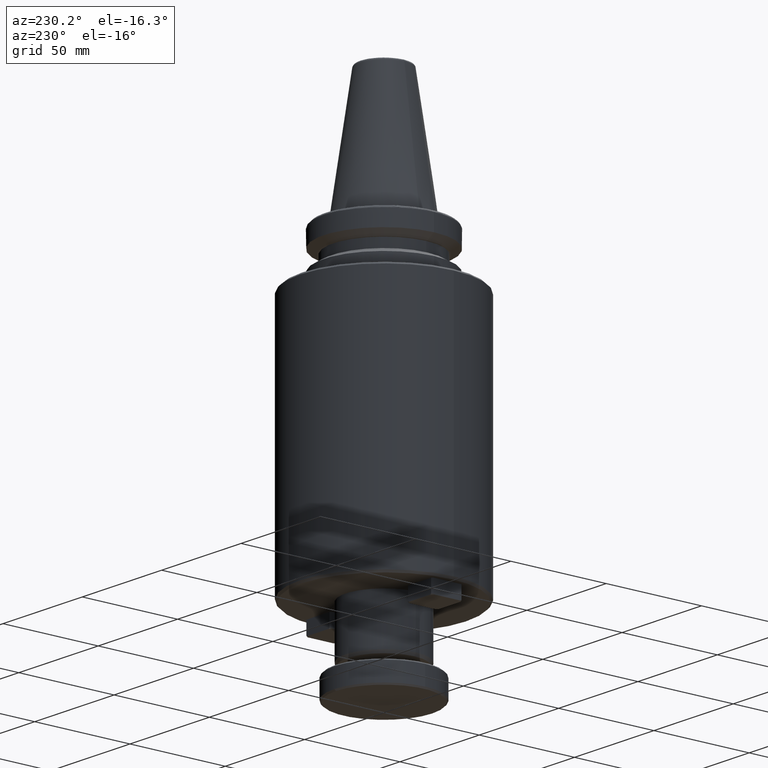
[diagram: clean part render]
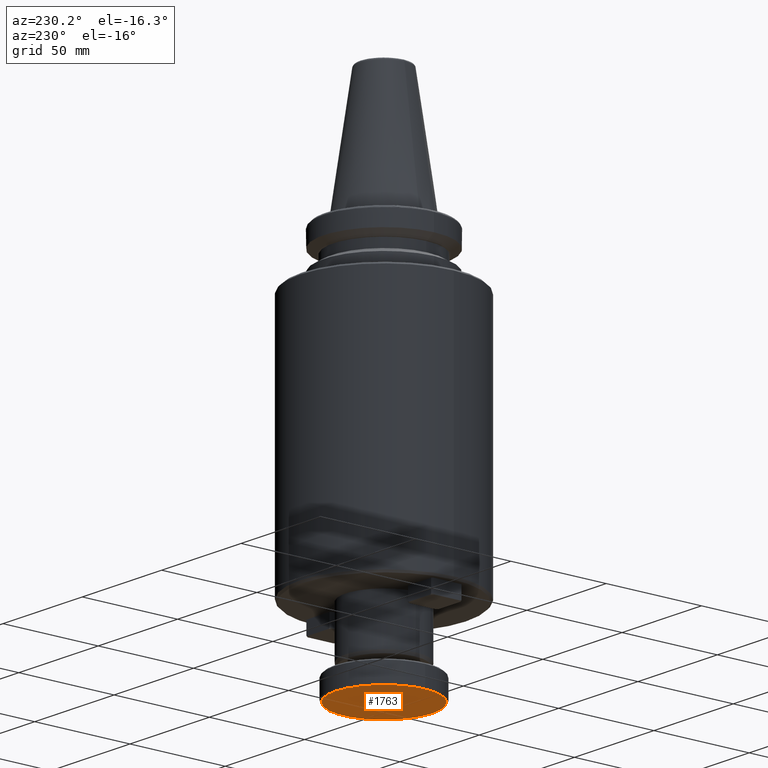
[diagram: same view with one face highlighted and labeled with its STEP entity id]
A machine part, auxiliary view. The second image highlights one B-rep face of the part: STEP entity #1763.
In plain terms, the highlighted planar face has unit normal (0, 0, 1).
Its self-contained STEP definition (entity closure, byte-faithful):
#210 = ORIENTED_EDGE ( 'NONE', *, *, #920, .F. ) ;
#325 = FACE_OUTER_BOUND ( 'NONE', #533, .T. ) ;
#393 = CIRCLE ( 'NONE', #2136, 25.30000000000000100 ) ;
#533 = EDGE_LOOP ( 'NONE', ( #2707, #210 ) ) ;
#647 = VERTEX_POINT ( 'NONE', #2485 ) ;
#826 = DIRECTION ( 'NONE',  ( 0.0000000000000000000, -1.000000000000000000, 0.0000000000000000000 ) ) ;
#920 = EDGE_CURVE ( 'NONE', #647, #1705, #393, .T. ) ;
#1100 = CARTESIAN_POINT ( 'NONE',  ( 0.0000000000000000000, -25.30000000000000100, -202.0000000000000000 ) ) ;
#1575 = DIRECTION ( 'NONE',  ( 0.0000000000000000000, -5.337610695313252400E-016, 1.000000000000000000 ) ) ;
#1618 = AXIS2_PLACEMENT_3D ( 'NONE', #3216, #3212, #3210 ) ;
#1705 = VERTEX_POINT ( 'NONE', #1100 ) ;
#1763 = ADVANCED_FACE ( 'NONE', ( #325 ), #3572, .F. ) ;
#2136 = AXIS2_PLACEMENT_3D ( 'NONE', #2827, #2770, #826 ) ;
#2256 = CARTESIAN_POINT ( 'NONE',  ( 0.0000000000000000000, 3.736327486719309900E-016, -202.0000000000000000 ) ) ;
#2485 = CARTESIAN_POINT ( 'NONE',  ( 3.141219039812961000E-015, 25.30000000000000100, -202.0000000000000000 ) ) ;
#2707 = ORIENTED_EDGE ( 'NONE', *, *, #3511, .F. ) ;
#2770 = DIRECTION ( 'NONE',  ( 0.0000000000000000000, -5.337610695313252400E-016, 1.000000000000000000 ) ) ;
#2827 = CARTESIAN_POINT ( 'NONE',  ( 0.0000000000000000000, 3.736327486719309900E-016, -202.0000000000000000 ) ) ;
#3170 = AXIS2_PLACEMENT_3D ( 'NONE', #2256, #1575, #3422 ) ;
#3210 = DIRECTION ( 'NONE',  ( 1.000000000000000000, 0.0000000000000000000, -0.0000000000000000000 ) ) ;
#3212 = DIRECTION ( 'NONE',  ( 0.0000000000000000000, 0.0000000000000000000, 1.000000000000000000 ) ) ;
#3216 = CARTESIAN_POINT ( 'NONE',  ( -25.30000000000000100, 0.0000000000000000000, -202.0000000000000000 ) ) ;
#3422 = DIRECTION ( 'NONE',  ( 0.0000000000000000000, -1.000000000000000000, 0.0000000000000000000 ) ) ;
#3491 = CIRCLE ( 'NONE', #3170, 25.30000000000000100 ) ;
#3511 = EDGE_CURVE ( 'NONE', #1705, #647, #3491, .T. ) ;
#3572 = PLANE ( 'NONE',  #1618 ) ;